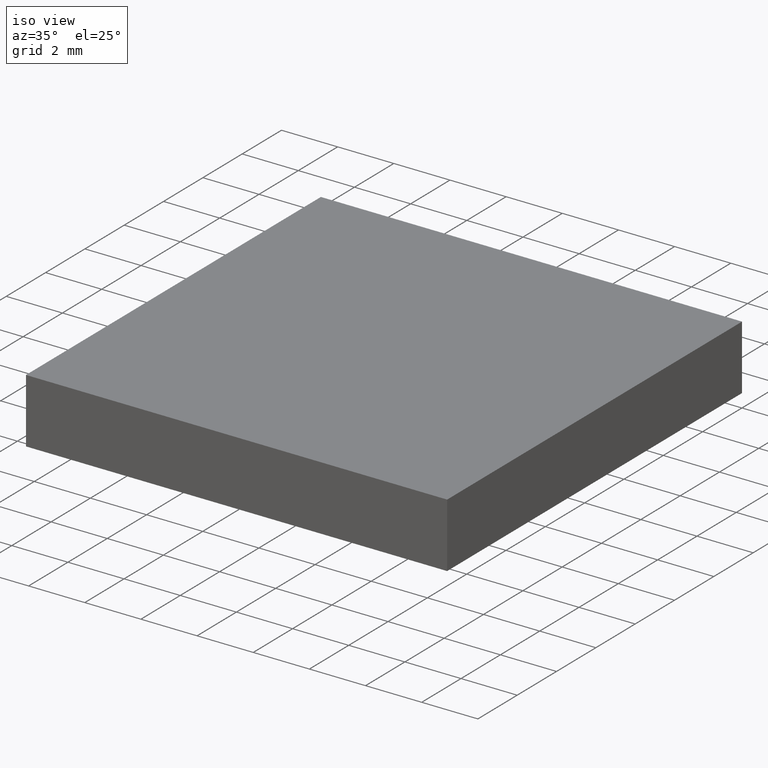
[diagram: clean part render]
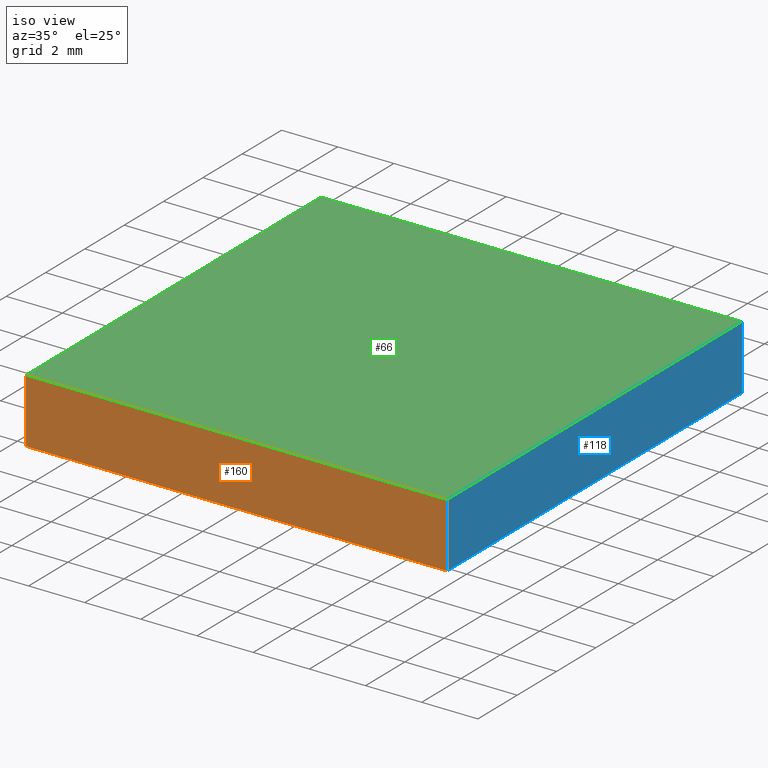
[diagram: same view with three faces highlighted in distinct colors, each labeled with its STEP entity id]
A machine part, iso view with three faces highlighted in distinct colors.
Their STEP definitions:

[orange] entity #160 — the highlighted planar face has unit normal (0, 1, 0).
#2 = FACE_OUTER_BOUND ( 'NONE', #48, .T. ) ;
#3 = EDGE_CURVE ( 'NONE', #170, #145, #12, .T. ) ;
#12 = LINE ( 'NONE', #23, #98 ) ;
#13 = EDGE_CURVE ( 'NONE', #145, #85, #103, .T. ) ;
#14 = CARTESIAN_POINT ( 'NONE',  ( 61.80749197114184300, 23.28162091726329700, 2.299999999999999800 ) ) ;
#23 = CARTESIAN_POINT ( 'NONE',  ( 46.80749197114185000, 23.28162091726329700, 2.299999999999999800 ) ) ;
#38 = CARTESIAN_POINT ( 'NONE',  ( 61.80749197114184300, 23.28162091726329700, 0.0000000000000000000 ) ) ;
#41 = LINE ( 'NONE', #59, #171 ) ;
#48 = EDGE_LOOP ( 'NONE', ( #129, #91, #117, #161 ) ) ;
#59 = CARTESIAN_POINT ( 'NONE',  ( 46.80749197114185000, 23.28162091726329700, 2.299999999999999800 ) ) ;
#71 = AXIS2_PLACEMENT_3D ( 'NONE', #124, #185, #197 ) ;
#85 = VERTEX_POINT ( 'NONE', #38 ) ;
#86 = DIRECTION ( 'NONE',  ( 1.000000000000000000, 0.0000000000000000000, 0.0000000000000000000 ) ) ;
#87 = CARTESIAN_POINT ( 'NONE',  ( 61.80749197114184300, 23.28162091726329700, 2.299999999999999800 ) ) ;
#88 = PLANE ( 'NONE',  #71 ) ;
#91 = ORIENTED_EDGE ( 'NONE', *, *, #153, .F. ) ;
#96 = VECTOR ( 'NONE', #110, 1000.000000000000000 ) ;
#98 = VECTOR ( 'NONE', #132, 1000.000000000000000 ) ;
#103 = LINE ( 'NONE', #194, #149 ) ;
#110 = DIRECTION ( 'NONE',  ( -0.0000000000000000000, -0.0000000000000000000, -1.000000000000000000 ) ) ;
#117 = ORIENTED_EDGE ( 'NONE', *, *, #122, .F. ) ;
#122 = EDGE_CURVE ( 'NONE', #170, #154, #41, .T. ) ;
#124 = CARTESIAN_POINT ( 'NONE',  ( 46.80749197114185000, 23.28162091726329700, 2.299999999999999800 ) ) ;
#127 = LINE ( 'NONE', #87, #96 ) ;
#129 = ORIENTED_EDGE ( 'NONE', *, *, #13, .T. ) ;
#132 = DIRECTION ( 'NONE',  ( -0.0000000000000000000, -0.0000000000000000000, -1.000000000000000000 ) ) ;
#145 = VERTEX_POINT ( 'NONE', #183 ) ;
#148 = CARTESIAN_POINT ( 'NONE',  ( 46.80749197114185000, 23.28162091726329700, 2.299999999999999800 ) ) ;
#149 = VECTOR ( 'NONE', #86, 1000.000000000000000 ) ;
#153 = EDGE_CURVE ( 'NONE', #154, #85, #127, .T. ) ;
#154 = VERTEX_POINT ( 'NONE', #14 ) ;
#160 = ADVANCED_FACE ( 'NONE', ( #2 ), #88, .F. ) ;
#161 = ORIENTED_EDGE ( 'NONE', *, *, #3, .T. ) ;
#170 = VERTEX_POINT ( 'NONE', #148 ) ;
#171 = VECTOR ( 'NONE', #199, 1000.000000000000000 ) ;
#183 = CARTESIAN_POINT ( 'NONE',  ( 46.80749197114185000, 23.28162091726329700, 0.0000000000000000000 ) ) ;
#185 = DIRECTION ( 'NONE',  ( 0.0000000000000000000, 1.000000000000000000, 0.0000000000000000000 ) ) ;
#194 = CARTESIAN_POINT ( 'NONE',  ( 46.80749197114185000, 23.28162091726329700, 0.0000000000000000000 ) ) ;
#197 = DIRECTION ( 'NONE',  ( 0.0000000000000000000, -0.0000000000000000000, 1.000000000000000000 ) ) ;
#199 = DIRECTION ( 'NONE',  ( 1.000000000000000000, 0.0000000000000000000, 0.0000000000000000000 ) ) ;

[blue] entity #118 — the highlighted planar face has unit normal (-1, -0, 0).
#9 = CARTESIAN_POINT ( 'NONE',  ( 61.80749197114184300, 38.28162091726330400, 2.299999999999999800 ) ) ;
#14 = CARTESIAN_POINT ( 'NONE',  ( 61.80749197114184300, 23.28162091726329700, 2.299999999999999800 ) ) ;
#15 = CARTESIAN_POINT ( 'NONE',  ( 61.80749197114184300, 38.28162091726330400, 0.0000000000000000000 ) ) ;
#24 = DIRECTION ( 'NONE',  ( -4.625929269271483900E-016, 1.000000000000000000, -0.0000000000000000000 ) ) ;
#35 = EDGE_CURVE ( 'NONE', #154, #64, #113, .T. ) ;
#38 = CARTESIAN_POINT ( 'NONE',  ( 61.80749197114184300, 23.28162091726329700, 0.0000000000000000000 ) ) ;
#44 = EDGE_CURVE ( 'NONE', #85, #135, #176, .T. ) ;
#49 = FACE_OUTER_BOUND ( 'NONE', #175, .T. ) ;
#61 = EDGE_CURVE ( 'NONE', #64, #135, #63, .T. ) ;
#63 = LINE ( 'NONE', #121, #67 ) ;
#64 = VERTEX_POINT ( 'NONE', #9 ) ;
#67 = VECTOR ( 'NONE', #100, 1000.000000000000000 ) ;
#70 = CARTESIAN_POINT ( 'NONE',  ( 61.80749197114184300, 38.28162091726330400, 2.299999999999999800 ) ) ;
#73 = DIRECTION ( 'NONE',  ( 4.625929269271483900E-016, -1.000000000000000000, 0.0000000000000000000 ) ) ;
#84 = CARTESIAN_POINT ( 'NONE',  ( 61.80749197114184300, 38.28162091726330400, 0.0000000000000000000 ) ) ;
#85 = VERTEX_POINT ( 'NONE', #38 ) ;
#87 = CARTESIAN_POINT ( 'NONE',  ( 61.80749197114184300, 23.28162091726329700, 2.299999999999999800 ) ) ;
#96 = VECTOR ( 'NONE', #110, 1000.000000000000000 ) ;
#97 = VECTOR ( 'NONE', #144, 1000.000000000000000 ) ;
#100 = DIRECTION ( 'NONE',  ( -0.0000000000000000000, -0.0000000000000000000, -1.000000000000000000 ) ) ;
#110 = DIRECTION ( 'NONE',  ( -0.0000000000000000000, -0.0000000000000000000, -1.000000000000000000 ) ) ;
#113 = LINE ( 'NONE', #70, #191 ) ;
#118 = ADVANCED_FACE ( 'NONE', ( #49 ), #134, .F. ) ;
#121 = CARTESIAN_POINT ( 'NONE',  ( 61.80749197114184300, 38.28162091726330400, 2.299999999999999800 ) ) ;
#125 = ORIENTED_EDGE ( 'NONE', *, *, #153, .T. ) ;
#127 = LINE ( 'NONE', #87, #96 ) ;
#134 = PLANE ( 'NONE',  #139 ) ;
#135 = VERTEX_POINT ( 'NONE', #15 ) ;
#137 = ORIENTED_EDGE ( 'NONE', *, *, #44, .T. ) ;
#138 = DIRECTION ( 'NONE',  ( -1.000000000000000000, -4.625929269271483900E-016, 0.0000000000000000000 ) ) ;
#139 = AXIS2_PLACEMENT_3D ( 'NONE', #184, #138, #73 ) ;
#144 = DIRECTION ( 'NONE',  ( -4.625929269271483900E-016, 1.000000000000000000, -0.0000000000000000000 ) ) ;
#153 = EDGE_CURVE ( 'NONE', #154, #85, #127, .T. ) ;
#154 = VERTEX_POINT ( 'NONE', #14 ) ;
#175 = EDGE_LOOP ( 'NONE', ( #137, #179, #190, #125 ) ) ;
#176 = LINE ( 'NONE', #84, #97 ) ;
#179 = ORIENTED_EDGE ( 'NONE', *, *, #61, .F. ) ;
#184 = CARTESIAN_POINT ( 'NONE',  ( 61.80749197114184300, 38.28162091726330400, 2.299999999999999800 ) ) ;
#190 = ORIENTED_EDGE ( 'NONE', *, *, #35, .F. ) ;
#191 = VECTOR ( 'NONE', #24, 1000.000000000000000 ) ;

[green] entity #66 — the highlighted planar face has unit normal (-0, 0, 1).
#5 = VERTEX_POINT ( 'NONE', #72 ) ;
#9 = CARTESIAN_POINT ( 'NONE',  ( 61.80749197114184300, 38.28162091726330400, 2.299999999999999800 ) ) ;
#10 = CARTESIAN_POINT ( 'NONE',  ( 0.0000000000000000000, 0.0000000000000000000, 2.299999999999999800 ) ) ;
#14 = CARTESIAN_POINT ( 'NONE',  ( 61.80749197114184300, 23.28162091726329700, 2.299999999999999800 ) ) ;
#16 = EDGE_CURVE ( 'NONE', #64, #5, #52, .T. ) ;
#20 = FACE_OUTER_BOUND ( 'NONE', #198, .T. ) ;
#21 = EDGE_CURVE ( 'NONE', #5, #170, #109, .T. ) ;
#24 = DIRECTION ( 'NONE',  ( -4.625929269271483900E-016, 1.000000000000000000, -0.0000000000000000000 ) ) ;
#35 = EDGE_CURVE ( 'NONE', #154, #64, #113, .T. ) ;
#36 = ORIENTED_EDGE ( 'NONE', *, *, #122, .T. ) ;
#41 = LINE ( 'NONE', #59, #171 ) ;
#52 = LINE ( 'NONE', #162, #53 ) ;
#53 = VECTOR ( 'NONE', #69, 1000.000000000000000 ) ;
#56 = DIRECTION ( 'NONE',  ( 4.625929269271485900E-016, -1.000000000000000000, 0.0000000000000000000 ) ) ;
#59 = CARTESIAN_POINT ( 'NONE',  ( 46.80749197114185000, 23.28162091726329700, 2.299999999999999800 ) ) ;
#64 = VERTEX_POINT ( 'NONE', #9 ) ;
#66 = ADVANCED_FACE ( 'NONE', ( #20 ), #123, .T. ) ;
#69 = DIRECTION ( 'NONE',  ( -1.000000000000000000, -4.625929269271485900E-016, -0.0000000000000000000 ) ) ;
#70 = CARTESIAN_POINT ( 'NONE',  ( 61.80749197114184300, 38.28162091726330400, 2.299999999999999800 ) ) ;
#72 = CARTESIAN_POINT ( 'NONE',  ( 46.80749197114184300, 38.28162091726329700, 2.299999999999999800 ) ) ;
#80 = ORIENTED_EDGE ( 'NONE', *, *, #21, .T. ) ;
#92 = VECTOR ( 'NONE', #56, 1000.000000000000000 ) ;
#102 = DIRECTION ( 'NONE',  ( -0.0000000000000000000, 0.0000000000000000000, 1.000000000000000000 ) ) ;
#104 = DIRECTION ( 'NONE',  ( 1.000000000000000000, 0.0000000000000000000, 0.0000000000000000000 ) ) ;
#109 = LINE ( 'NONE', #163, #92 ) ;
#113 = LINE ( 'NONE', #70, #191 ) ;
#122 = EDGE_CURVE ( 'NONE', #170, #154, #41, .T. ) ;
#123 = PLANE ( 'NONE',  #173 ) ;
#133 = ORIENTED_EDGE ( 'NONE', *, *, #16, .T. ) ;
#148 = CARTESIAN_POINT ( 'NONE',  ( 46.80749197114185000, 23.28162091726329700, 2.299999999999999800 ) ) ;
#154 = VERTEX_POINT ( 'NONE', #14 ) ;
#162 = CARTESIAN_POINT ( 'NONE',  ( 46.80749197114184300, 38.28162091726329700, 2.299999999999999800 ) ) ;
#163 = CARTESIAN_POINT ( 'NONE',  ( 46.80749197114184300, 38.28162091726329700, 2.299999999999999800 ) ) ;
#167 = ORIENTED_EDGE ( 'NONE', *, *, #35, .T. ) ;
#170 = VERTEX_POINT ( 'NONE', #148 ) ;
#171 = VECTOR ( 'NONE', #199, 1000.000000000000000 ) ;
#173 = AXIS2_PLACEMENT_3D ( 'NONE', #10, #102, #104 ) ;
#191 = VECTOR ( 'NONE', #24, 1000.000000000000000 ) ;
#198 = EDGE_LOOP ( 'NONE', ( #80, #36, #167, #133 ) ) ;
#199 = DIRECTION ( 'NONE',  ( 1.000000000000000000, 0.0000000000000000000, 0.0000000000000000000 ) ) ;